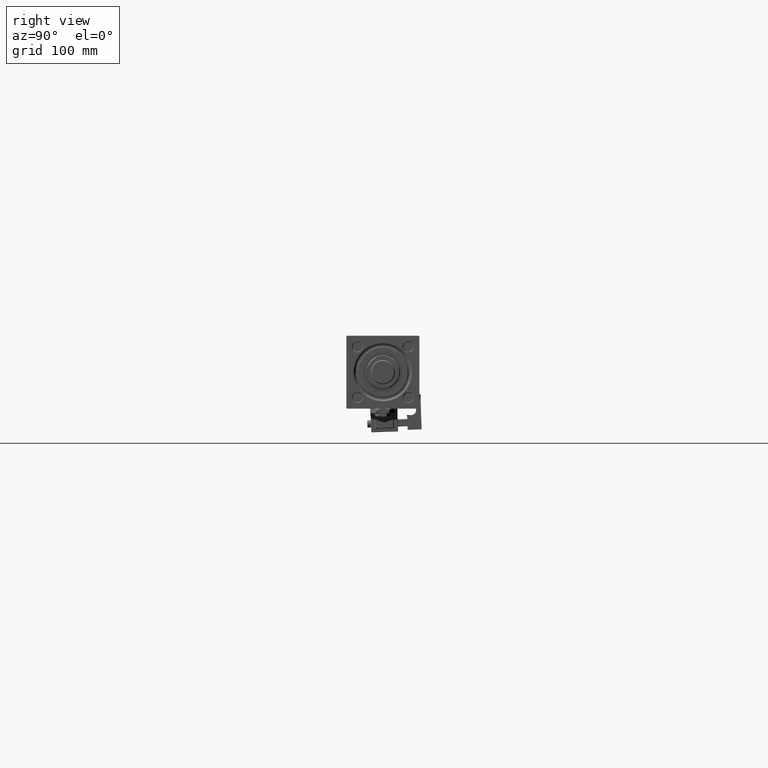
[diagram: clean part render]
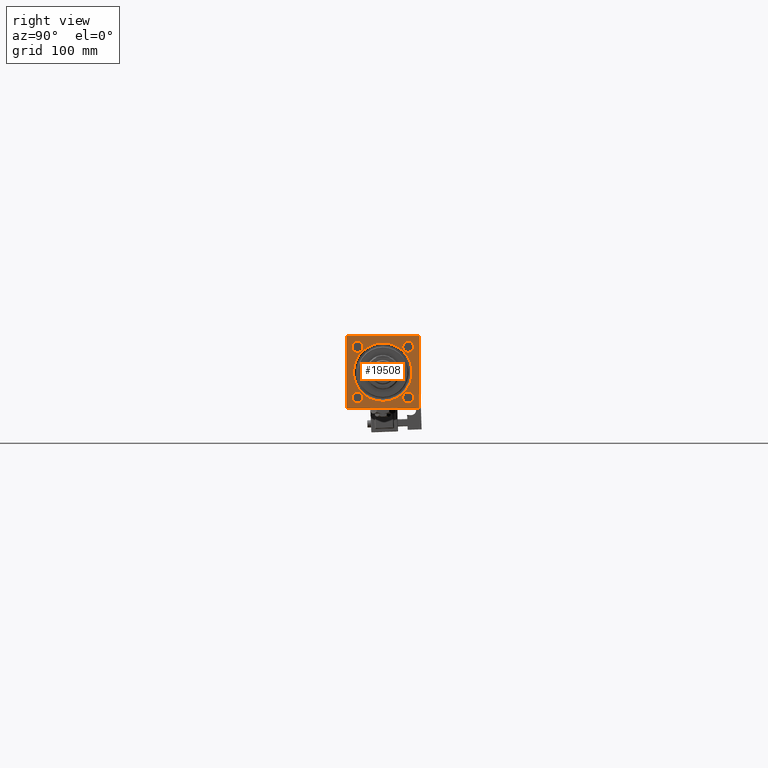
[diagram: same view with one face highlighted and labeled with its STEP entity id]
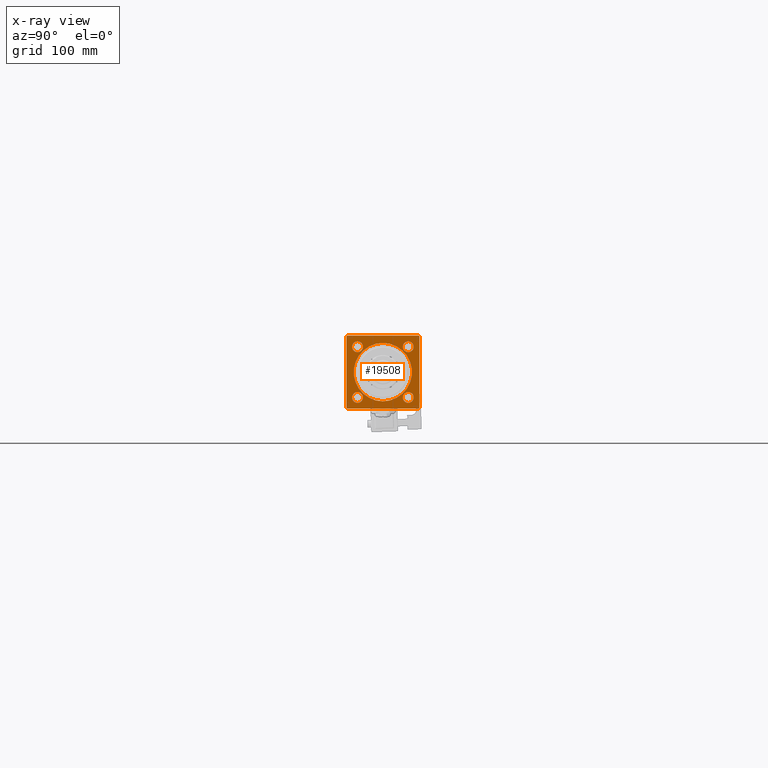
[diagram: x-ray of the same camera — body ghosted, the highlighted face saturated]
A machine part, right view. The second image highlights one B-rep face of the part: STEP entity #19508.
The next image is the same camera in x-ray: the body ghosted, the highlighted face saturated — about 0% of this face is hidden behind the body in this view.
In plain terms, the highlighted planar face has unit normal (-1, 0, 0).
Its self-contained STEP definition (entity closure, byte-faithful):
#278 = CARTESIAN_POINT ( 'NONE',  ( 528.0000000000000000, -20.85000000000000142, -25.34999999999994813 ) ) ;
#630 = DIRECTION ( 'NONE',  ( -1.000000000000000000, 0.000000000000000000, -0.000000000000000000 ) ) ;
#737 = ORIENTED_EDGE ( 'NONE', *, *, #7113, .T. ) ;
#985 = DIRECTION ( 'NONE',  ( -1.000000000000000000, 0.000000000000000000, -0.000000000000000000 ) ) ;
#2108 = CARTESIAN_POINT ( 'NONE',  ( 528.0000000000000000, 29.49999999999994316, 30.00000000000000000 ) ) ;
#2239 = FACE_BOUND ( 'NONE', #14731, .T. ) ;
#2357 = EDGE_LOOP ( 'NONE', ( #47853, #15962 ) ) ;
#2545 = VECTOR ( 'NONE', #37384, 1000.000000000000000 ) ;
#2617 = ORIENTED_EDGE ( 'NONE', *, *, #15561, .T. ) ;
#2761 = LINE ( 'NONE', #19691, #36241 ) ;
#3212 = ORIENTED_EDGE ( 'NONE', *, *, #38463, .T. ) ;
#3394 = LINE ( 'NONE', #33937, #25358 ) ;
#3591 = EDGE_CURVE ( 'NONE', #9771, #52103, #30395, .T. ) ;
#3939 = DIRECTION ( 'NONE',  ( -0.000000000000000000, 0.7071067811865867636, 0.7071067811865081598 ) ) ;
#4313 = VECTOR ( 'NONE', #39514, 1000.000000000000000 ) ;
#4390 = DIRECTION ( 'NONE',  ( 0.000000000000000000, 0.000000000000000000, 1.000000000000000000 ) ) ;
#5029 = DIRECTION ( 'NONE',  ( -1.000000000000000000, 0.000000000000000000, -0.000000000000000000 ) ) ;
#5031 = CARTESIAN_POINT ( 'NONE',  ( 528.0000000000000000, -29.49999999999994316, 29.99999999999999289 ) ) ;
#5086 = EDGE_CURVE ( 'NONE', #52279, #53429, #48461, .T. ) ;
#5304 = DIRECTION ( 'NONE',  ( 0.000000000000000000, 0.000000000000000000, -1.000000000000000000 ) ) ;
#5420 = CARTESIAN_POINT ( 'NONE',  ( 528.0000000000000000, 20.84999999999999787, -20.85000000000000142 ) ) ;
#5588 = CARTESIAN_POINT ( 'NONE',  ( 528.0000000000000000, -30.00000000000000000, 29.99999999999999289 ) ) ;
#5621 = ORIENTED_EDGE ( 'NONE', *, *, #48224, .T. ) ;
#5624 = CARTESIAN_POINT ( 'NONE',  ( 528.0000000000000000, 30.00000000000000000, 30.00000000000000000 ) ) ;
#6052 = AXIS2_PLACEMENT_3D ( 'NONE', #41368, #14977, #16067 ) ;
#6118 = FACE_BOUND ( 'NONE', #46726, .T. ) ;
#6396 = CARTESIAN_POINT ( 'NONE',  ( 528.0000000000000000, 0.000000000000000000, 0.000000000000000000 ) ) ;
#6446 = ORIENTED_EDGE ( 'NONE', *, *, #30190, .T. ) ;
#6554 = ORIENTED_EDGE ( 'NONE', *, *, #41460, .T. ) ;
#6590 = VERTEX_POINT ( 'NONE', #5031 ) ;
#6620 = VERTEX_POINT ( 'NONE', #44755 ) ;
#6966 = DIRECTION ( 'NONE',  ( 0.000000000000000000, 0.000000000000000000, 1.000000000000000000 ) ) ;
#7041 = EDGE_CURVE ( 'NONE', #54211, #17999, #30651, .T. ) ;
#7072 = DIRECTION ( 'NONE',  ( -1.000000000000000000, 0.000000000000000000, -0.000000000000000000 ) ) ;
#7113 = EDGE_CURVE ( 'NONE', #13218, #43051, #18223, .T. ) ;
#7481 = CARTESIAN_POINT ( 'NONE',  ( 528.0000000000000000, -20.85000000000000142, -16.35000000000005116 ) ) ;
#7773 = CARTESIAN_POINT ( 'NONE',  ( 528.0000000000000000, 30.00000000000000000, 29.50000000000000000 ) ) ;
#8339 = VERTEX_POINT ( 'NONE', #17290 ) ;
#8780 = DIRECTION ( 'NONE',  ( 0.000000000000000000, 0.000000000000000000, 1.000000000000000000 ) ) ;
#9143 = AXIS2_PLACEMENT_3D ( 'NONE', #38232, #46284, #8780 ) ;
#9194 = CARTESIAN_POINT ( 'NONE',  ( 528.0000000000000000, -20.84999999999999432, 20.85000000000000142 ) ) ;
#9225 = AXIS2_PLACEMENT_3D ( 'NONE', #44476, #23917, #6966 ) ;
#9442 = ORIENTED_EDGE ( 'NONE', *, *, #27668, .F. ) ;
#9470 = EDGE_CURVE ( 'NONE', #52103, #9771, #36113, .T. ) ;
#9771 = VERTEX_POINT ( 'NONE', #23260 ) ;
#10361 = AXIS2_PLACEMENT_3D ( 'NONE', #20381, #7072, #50092 ) ;
#10563 = FACE_BOUND ( 'NONE', #23005, .T. ) ;
#10869 = EDGE_CURVE ( 'NONE', #40614, #19128, #52969, .T. ) ;
#11339 = ORIENTED_EDGE ( 'NONE', *, *, #7041, .T. ) ;
#11704 = VECTOR ( 'NONE', #34075, 1000.000000000000000 ) ;
#11835 = CARTESIAN_POINT ( 'NONE',  ( 528.0000000000000000, 30.00000000000000000, 30.00000000000000000 ) ) ;
#11954 = DIRECTION ( 'NONE',  ( 0.000000000000000000, 0.7071067811865867636, -0.7071067811865081598 ) ) ;
#11978 = DIRECTION ( 'NONE',  ( 0.000000000000000000, 0.000000000000000000, 1.000000000000000000 ) ) ;
#12853 = DIRECTION ( 'NONE',  ( 0.000000000000000000, 0.000000000000000000, 1.000000000000000000 ) ) ;
#13218 = VERTEX_POINT ( 'NONE', #35384 ) ;
#14731 = EDGE_LOOP ( 'NONE', ( #6446, #737 ) ) ;
#14977 = DIRECTION ( 'NONE',  ( -1.000000000000000000, 0.000000000000000000, -0.000000000000000000 ) ) ;
#15373 = ORIENTED_EDGE ( 'NONE', *, *, #32269, .T. ) ;
#15561 = EDGE_CURVE ( 'NONE', #6620, #53391, #24720, .T. ) ;
#15705 = ORIENTED_EDGE ( 'NONE', *, *, #5086, .T. ) ;
#15962 = ORIENTED_EDGE ( 'NONE', *, *, #9470, .T. ) ;
#16067 = DIRECTION ( 'NONE',  ( 0.000000000000000000, 0.000000000000000000, 1.000000000000000000 ) ) ;
#16487 = CARTESIAN_POINT ( 'NONE',  ( 528.0000000000000000, 29.49999999999994316, -29.99999999999999289 ) ) ;
#17102 = CARTESIAN_POINT ( 'NONE',  ( 528.0000000000000000, 30.00000000000000000, -29.99999999999999289 ) ) ;
#17290 = CARTESIAN_POINT ( 'NONE',  ( 528.0000000000000000, -30.00000000000000000, 29.49999999999999289 ) ) ;
#17999 = VERTEX_POINT ( 'NONE', #7481 ) ;
#18223 = CIRCLE ( 'NONE', #24469, 4.499999999999948486 ) ;
#19031 = DIRECTION ( 'NONE',  ( 0.000000000000000000, -0.7071067811865867636, 0.7071067811865081598 ) ) ;
#19128 = VERTEX_POINT ( 'NONE', #34330 ) ;
#19164 = DIRECTION ( 'NONE',  ( -0.000000000000000000, 0.000000000000000000, 1.000000000000000000 ) ) ;
#19478 = AXIS2_PLACEMENT_3D ( 'NONE', #6396, #40282, #19164 ) ;
#19508 = ADVANCED_FACE ( 'NONE', ( #2239, #6118, #10563, #23062, #23338, #44448 ), #23615, .F. ) ;
#19691 = CARTESIAN_POINT ( 'NONE',  ( 528.0000000000000000, -30.00000000000000000, 29.49999999999999289 ) ) ;
#20381 = CARTESIAN_POINT ( 'NONE',  ( 528.0000000000000000, 0.000000000000000000, 0.000000000000000000 ) ) ;
#20685 = CIRCLE ( 'NONE', #9143, 4.499999999999948486 ) ;
#20804 = VECTOR ( 'NONE', #5304, 1000.000000000000000 ) ;
#20850 = CARTESIAN_POINT ( 'NONE',  ( 528.0000000000000000, -20.85000000000000142, -20.85000000000000142 ) ) ;
#21600 = DIRECTION ( 'NONE',  ( -1.000000000000000000, 0.000000000000000000, -0.000000000000000000 ) ) ;
#21833 = EDGE_CURVE ( 'NONE', #17999, #54211, #44423, .T. ) ;
#21871 = VERTEX_POINT ( 'NONE', #46127 ) ;
#22095 = LINE ( 'NONE', #17102, #11704 ) ;
#22135 = CIRCLE ( 'NONE', #45196, 4.499999999999948486 ) ;
#23005 = EDGE_LOOP ( 'NONE', ( #11339, #34786 ) ) ;
#23062 = FACE_BOUND ( 'NONE', #47873, .T. ) ;
#23260 = CARTESIAN_POINT ( 'NONE',  ( 528.0000000000000000, 0.000000000000000000, -23.99999999999991473 ) ) ;
#23338 = FACE_BOUND ( 'NONE', #2357, .T. ) ;
#23615 = PLANE ( 'NONE',  #19478 ) ;
#23737 = ORIENTED_EDGE ( 'NONE', *, *, #46448, .T. ) ;
#23917 = DIRECTION ( 'NONE',  ( -1.000000000000000000, 0.000000000000000000, -0.000000000000000000 ) ) ;
#24349 = VERTEX_POINT ( 'NONE', #16487 ) ;
#24469 = AXIS2_PLACEMENT_3D ( 'NONE', #34119, #21600, #4390 ) ;
#24677 = VECTOR ( 'NONE', #11954, 1000.000000000000000 ) ;
#24720 = LINE ( 'NONE', #25264, #24677 ) ;
#24788 = CARTESIAN_POINT ( 'NONE',  ( 528.0000000000000000, -20.84999999999999432, 25.34999999999994813 ) ) ;
#25194 = EDGE_LOOP ( 'NONE', ( #3212, #2617, #9442, #6554, #53727, #15705, #5621, #23737 ) ) ;
#25264 = CARTESIAN_POINT ( 'NONE',  ( 528.0000000000000000, -29.49999999999994316, -30.00000000000000000 ) ) ;
#25358 = VECTOR ( 'NONE', #3939, 1000.000000000000000 ) ;
#25779 = VERTEX_POINT ( 'NONE', #24788 ) ;
#25874 = DIRECTION ( 'NONE',  ( 0.000000000000000000, 0.000000000000000000, 1.000000000000000000 ) ) ;
#26016 = CARTESIAN_POINT ( 'NONE',  ( 528.0000000000000000, 29.49999999999994316, 30.00000000000000000 ) ) ;
#26129 = CARTESIAN_POINT ( 'NONE',  ( 528.0000000000000000, 2.939152317953637245E-15, 23.99999999999991473 ) ) ;
#26860 = AXIS2_PLACEMENT_3D ( 'NONE', #38675, #630, #12853 ) ;
#27668 = EDGE_CURVE ( 'NONE', #24349, #53391, #22095, .T. ) ;
#29042 = AXIS2_PLACEMENT_3D ( 'NONE', #5420, #985, #34334 ) ;
#29196 = DIRECTION ( 'NONE',  ( -1.000000000000000000, 0.000000000000000000, -0.000000000000000000 ) ) ;
#30190 = EDGE_CURVE ( 'NONE', #43051, #13218, #20685, .T. ) ;
#30395 = CIRCLE ( 'NONE', #26860, 23.99999999999991473 ) ;
#30598 = VERTEX_POINT ( 'NONE', #37071 ) ;
#30651 = CIRCLE ( 'NONE', #41331, 4.499999999999948486 ) ;
#32269 = EDGE_CURVE ( 'NONE', #30598, #25779, #45607, .T. ) ;
#32488 = DIRECTION ( 'NONE',  ( -0.000000000000000000, -0.7071067811865867636, -0.7071067811865081598 ) ) ;
#33572 = CARTESIAN_POINT ( 'NONE',  ( 528.0000000000000000, -20.85000000000000142, -20.85000000000000142 ) ) ;
#33937 = CARTESIAN_POINT ( 'NONE',  ( 528.0000000000000000, 30.00000000000000000, -29.49999999999999289 ) ) ;
#34075 = DIRECTION ( 'NONE',  ( 0.000000000000000000, -1.000000000000000000, -1.156482317317871478E-16 ) ) ;
#34098 = CARTESIAN_POINT ( 'NONE',  ( 528.0000000000000000, -29.49999999999994316, -30.00000000000000000 ) ) ;
#34119 = CARTESIAN_POINT ( 'NONE',  ( 528.0000000000000000, 20.84999999999999787, 20.85000000000000142 ) ) ;
#34252 = ORIENTED_EDGE ( 'NONE', *, *, #10869, .T. ) ;
#34330 = CARTESIAN_POINT ( 'NONE',  ( 528.0000000000000000, 20.84999999999999787, -16.35000000000005116 ) ) ;
#34334 = DIRECTION ( 'NONE',  ( 0.000000000000000000, 0.000000000000000000, 1.000000000000000000 ) ) ;
#34786 = ORIENTED_EDGE ( 'NONE', *, *, #21833, .T. ) ;
#34946 = CARTESIAN_POINT ( 'NONE',  ( 528.0000000000000000, 20.84999999999999787, -25.34999999999994813 ) ) ;
#35384 = CARTESIAN_POINT ( 'NONE',  ( 528.0000000000000000, 20.84999999999999787, 25.34999999999994813 ) ) ;
#36113 = CIRCLE ( 'NONE', #10361, 23.99999999999991473 ) ;
#36241 = VECTOR ( 'NONE', #32488, 1000.000000000000000 ) ;
#37071 = CARTESIAN_POINT ( 'NONE',  ( 528.0000000000000000, -20.84999999999999432, 16.35000000000005116 ) ) ;
#37384 = DIRECTION ( 'NONE',  ( 0.000000000000000000, 0.000000000000000000, -1.000000000000000000 ) ) ;
#38232 = CARTESIAN_POINT ( 'NONE',  ( 528.0000000000000000, 20.84999999999999787, 20.85000000000000142 ) ) ;
#38463 = EDGE_CURVE ( 'NONE', #8339, #6620, #47517, .T. ) ;
#38675 = CARTESIAN_POINT ( 'NONE',  ( 528.0000000000000000, 0.000000000000000000, 0.000000000000000000 ) ) ;
#39514 = DIRECTION ( 'NONE',  ( 0.000000000000000000, -1.000000000000000000, -1.156482317317871478E-16 ) ) ;
#40282 = DIRECTION ( 'NONE',  ( -1.000000000000000000, 0.000000000000000000, -0.000000000000000000 ) ) ;
#40614 = VERTEX_POINT ( 'NONE', #34946 ) ;
#40781 = CARTESIAN_POINT ( 'NONE',  ( 528.0000000000000000, 20.84999999999999787, 16.35000000000005116 ) ) ;
#41331 = AXIS2_PLACEMENT_3D ( 'NONE', #33572, #41641, #49683 ) ;
#41368 = CARTESIAN_POINT ( 'NONE',  ( 528.0000000000000000, 20.84999999999999787, -20.85000000000000142 ) ) ;
#41460 = EDGE_CURVE ( 'NONE', #24349, #21871, #3394, .T. ) ;
#41641 = DIRECTION ( 'NONE',  ( -1.000000000000000000, 0.000000000000000000, -0.000000000000000000 ) ) ;
#43051 = VERTEX_POINT ( 'NONE', #40781 ) ;
#43987 = ORIENTED_EDGE ( 'NONE', *, *, #52862, .T. ) ;
#44423 = CIRCLE ( 'NONE', #50579, 4.499999999999948486 ) ;
#44448 = FACE_OUTER_BOUND ( 'NONE', #25194, .T. ) ;
#44476 = CARTESIAN_POINT ( 'NONE',  ( 528.0000000000000000, -20.84999999999999432, 20.85000000000000142 ) ) ;
#44755 = CARTESIAN_POINT ( 'NONE',  ( 528.0000000000000000, -30.00000000000000000, -29.49999999999998579 ) ) ;
#45196 = AXIS2_PLACEMENT_3D ( 'NONE', #9194, #5029, #25874 ) ;
#45552 = VECTOR ( 'NONE', #19031, 1000.000000000000000 ) ;
#45607 = CIRCLE ( 'NONE', #9225, 4.499999999999948486 ) ;
#46127 = CARTESIAN_POINT ( 'NONE',  ( 528.0000000000000000, 30.00000000000000000, -29.49999999999997868 ) ) ;
#46284 = DIRECTION ( 'NONE',  ( -1.000000000000000000, 0.000000000000000000, -0.000000000000000000 ) ) ;
#46448 = EDGE_CURVE ( 'NONE', #6590, #8339, #2761, .T. ) ;
#46726 = EDGE_LOOP ( 'NONE', ( #15373, #43987 ) ) ;
#46785 = EDGE_CURVE ( 'NONE', #52279, #21871, #54845, .T. ) ;
#47230 = EDGE_CURVE ( 'NONE', #19128, #40614, #47754, .T. ) ;
#47517 = LINE ( 'NONE', #5588, #20804 ) ;
#47754 = CIRCLE ( 'NONE', #6052, 4.499999999999948486 ) ;
#47831 = LINE ( 'NONE', #5624, #4313 ) ;
#47853 = ORIENTED_EDGE ( 'NONE', *, *, #3591, .T. ) ;
#47873 = EDGE_LOOP ( 'NONE', ( #34252, #48442 ) ) ;
#48224 = EDGE_CURVE ( 'NONE', #53429, #6590, #47831, .T. ) ;
#48442 = ORIENTED_EDGE ( 'NONE', *, *, #47230, .T. ) ;
#48461 = LINE ( 'NONE', #2108, #45552 ) ;
#49683 = DIRECTION ( 'NONE',  ( 0.000000000000000000, 0.000000000000000000, 1.000000000000000000 ) ) ;
#50092 = DIRECTION ( 'NONE',  ( 0.000000000000000000, 0.000000000000000000, 1.000000000000000000 ) ) ;
#50579 = AXIS2_PLACEMENT_3D ( 'NONE', #20850, #29196, #11978 ) ;
#52103 = VERTEX_POINT ( 'NONE', #26129 ) ;
#52279 = VERTEX_POINT ( 'NONE', #7773 ) ;
#52862 = EDGE_CURVE ( 'NONE', #25779, #30598, #22135, .T. ) ;
#52969 = CIRCLE ( 'NONE', #29042, 4.499999999999948486 ) ;
#53391 = VERTEX_POINT ( 'NONE', #34098 ) ;
#53429 = VERTEX_POINT ( 'NONE', #26016 ) ;
#53727 = ORIENTED_EDGE ( 'NONE', *, *, #46785, .F. ) ;
#54211 = VERTEX_POINT ( 'NONE', #278 ) ;
#54845 = LINE ( 'NONE', #11835, #2545 ) ;